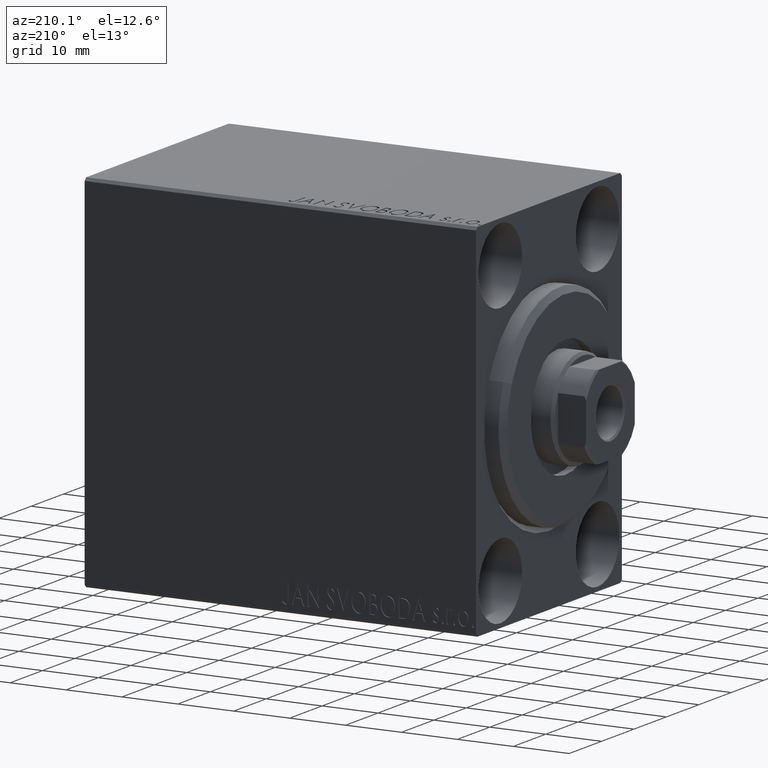
[diagram: clean part render]
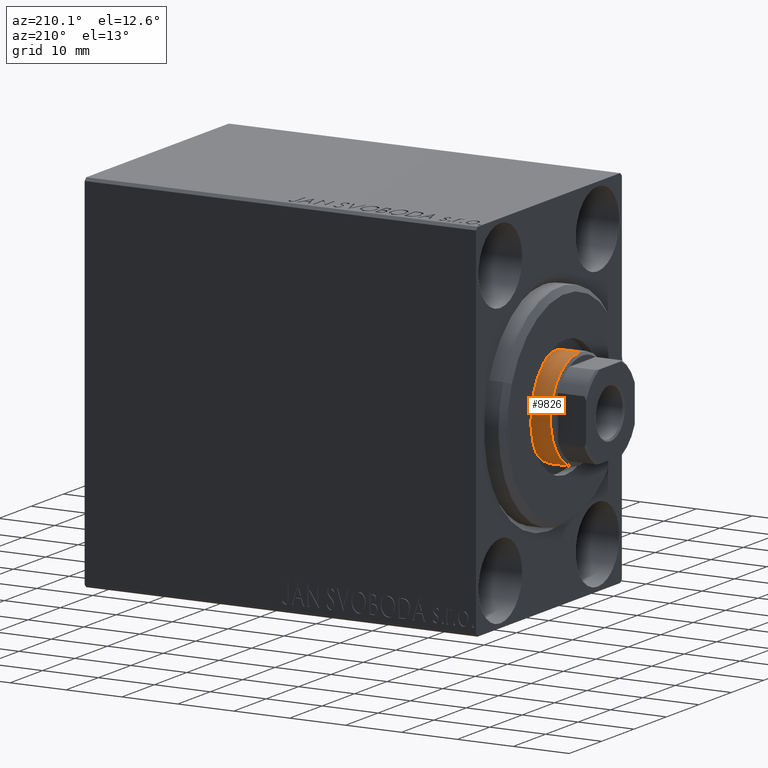
[diagram: same view with one face highlighted and labeled with its STEP entity id]
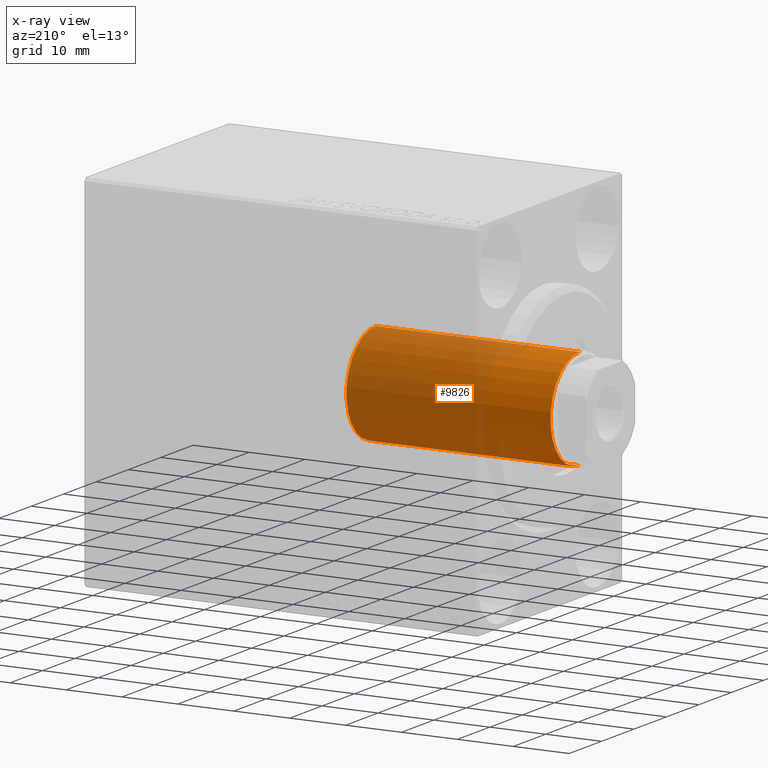
[diagram: x-ray of the same camera — body ghosted, the highlighted face saturated]
A machine part, auxiliary view. The second image highlights one B-rep face of the part: STEP entity #9826.
The next image is the same camera in x-ray: the body ghosted, the highlighted face saturated — about 70% of this face is hidden behind the body in this view.
In plain terms, the highlighted cylindrical surface (partial cylindrical patch) has radius 9 mm, axis along (1, -0, -0).
Its self-contained STEP definition (entity closure, byte-faithful):
#974 = DIRECTION ( 'NONE',  ( -1.000000000000000000, 0.000000000000000000, 0.000000000000000000 ) ) ;
#1361 = ORIENTED_EDGE ( 'NONE', *, *, #17955, .T. ) ;
#1473 = AXIS2_PLACEMENT_3D ( 'NONE', #22282, #14945, #42088 ) ;
#4630 = DIRECTION ( 'NONE',  ( -0.000000000000000000, -0.000000000000000000, -1.000000000000000000 ) ) ;
#4846 = CARTESIAN_POINT ( 'NONE',  ( -9.000000000000000000, 0.000000000000000000, 70.00000000000000000 ) ) ;
#6287 = CARTESIAN_POINT ( 'NONE',  ( 0.000000000000000000, 0.000000000000000000, 33.00000000000000000 ) ) ;
#7017 = EDGE_CURVE ( 'NONE', #33870, #32933, #31553, .T. ) ;
#7779 = EDGE_CURVE ( 'NONE', #33870, #35295, #33461, .T. ) ;
#8358 = ORIENTED_EDGE ( 'NONE', *, *, #7779, .T. ) ;
#9440 = AXIS2_PLACEMENT_3D ( 'NONE', #6287, #42781, #35881 ) ;
#9826 = ADVANCED_FACE ( 'NONE', ( #41677 ), #37899, .T. ) ;
#11188 = CARTESIAN_POINT ( 'NONE',  ( -9.000000000000000000, 0.000000000000000000, 33.00000000000000000 ) ) ;
#11192 = DIRECTION ( 'NONE',  ( -0.000000000000000000, -0.000000000000000000, -1.000000000000000000 ) ) ;
#14083 = CARTESIAN_POINT ( 'NONE',  ( 0.000000000000000000, 0.000000000000000000, 70.00000000000000000 ) ) ;
#14245 = ORIENTED_EDGE ( 'NONE', *, *, #21438, .T. ) ;
#14945 = DIRECTION ( 'NONE',  ( 0.000000000000000000, 0.000000000000000000, -1.000000000000000000 ) ) ;
#17955 = EDGE_CURVE ( 'NONE', #23199, #32933, #29348, .T. ) ;
#20840 = CARTESIAN_POINT ( 'NONE',  ( -9.000000000000000000, 0.000000000000000000, 69.50000000000000000 ) ) ;
#21438 = EDGE_CURVE ( 'NONE', #35295, #23199, #35212, .T. ) ;
#22282 = CARTESIAN_POINT ( 'NONE',  ( 0.000000000000000000, 0.000000000000000000, 69.50000000000000000 ) ) ;
#23199 = VERTEX_POINT ( 'NONE', #38457 ) ;
#23478 = VECTOR ( 'NONE', #4630, 1000.000000000000000 ) ;
#25418 = CARTESIAN_POINT ( 'NONE',  ( 9.000000000000000000, 1.102182119232617714E-15, 70.00000000000000000 ) ) ;
#28951 = CARTESIAN_POINT ( 'NONE',  ( 9.000000000000000000, 1.102182119232617714E-15, 69.50000000000000000 ) ) ;
#29348 = CIRCLE ( 'NONE', #9440, 9.000000000000000000 ) ;
#31553 = LINE ( 'NONE', #4846, #23478 ) ;
#32933 = VERTEX_POINT ( 'NONE', #11188 ) ;
#33461 = CIRCLE ( 'NONE', #1473, 9.000000000000000000 ) ;
#33870 = VERTEX_POINT ( 'NONE', #20840 ) ;
#34992 = DIRECTION ( 'NONE',  ( -0.000000000000000000, -0.000000000000000000, -1.000000000000000000 ) ) ;
#35212 = LINE ( 'NONE', #25418, #39358 ) ;
#35295 = VERTEX_POINT ( 'NONE', #28951 ) ;
#35600 = AXIS2_PLACEMENT_3D ( 'NONE', #14083, #11192, #974 ) ;
#35881 = DIRECTION ( 'NONE',  ( 1.000000000000000000, 0.000000000000000000, 0.000000000000000000 ) ) ;
#37899 = CYLINDRICAL_SURFACE ( 'NONE', #35600, 9.000000000000000000 ) ;
#38457 = CARTESIAN_POINT ( 'NONE',  ( 9.000000000000000000, 1.102182119232617714E-15, 33.00000000000000000 ) ) ;
#39058 = ORIENTED_EDGE ( 'NONE', *, *, #7017, .F. ) ;
#39176 = EDGE_LOOP ( 'NONE', ( #8358, #14245, #1361, #39058 ) ) ;
#39358 = VECTOR ( 'NONE', #34992, 1000.000000000000000 ) ;
#41677 = FACE_OUTER_BOUND ( 'NONE', #39176, .T. ) ;
#42088 = DIRECTION ( 'NONE',  ( 1.000000000000000000, 0.000000000000000000, 0.000000000000000000 ) ) ;
#42781 = DIRECTION ( 'NONE',  ( 0.000000000000000000, 0.000000000000000000, 1.000000000000000000 ) ) ;